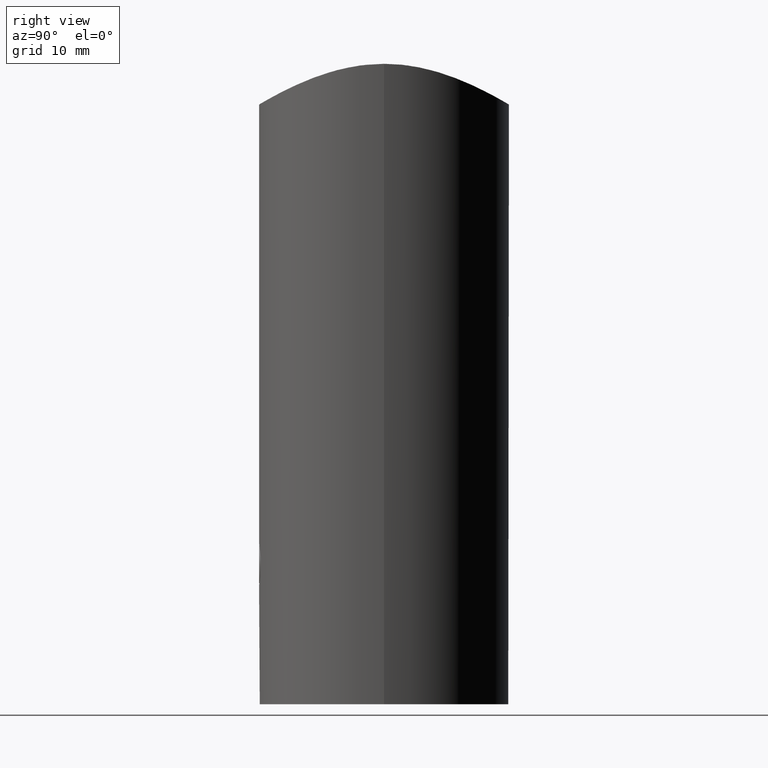
[diagram: clean part render]
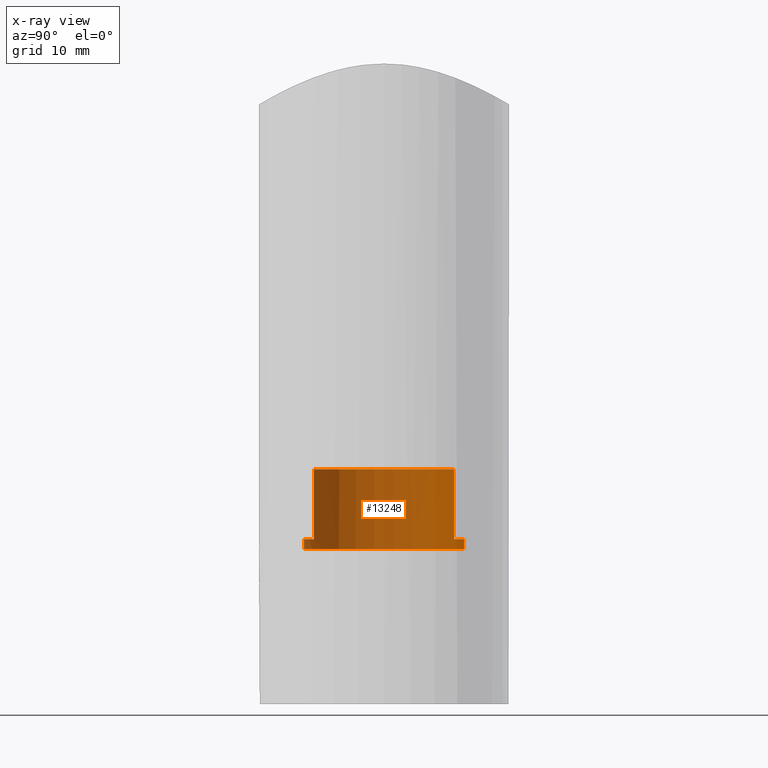
[diagram: x-ray — body ghosted, one internal face saturated and labeled with its STEP entity id]
A machine part, right view, then the same camera in x-ray: the body is ghosted and one INTERNAL B-rep face — a face not visible from any outside direction — is saturated and labeled: STEP entity #13248.
In plain terms, the highlighted cylindrical surface (partial cylindrical patch) has radius 8 mm, axis along (-0, -0, -1).
Its self-contained STEP definition (entity closure, byte-faithful):
#357 = CARTESIAN_POINT ( 'NONE',  ( 0.0000000000000000000, 0.0000000000000000000, -6.999999999999999100 ) ) ;
#424 = AXIS2_PLACEMENT_3D ( 'NONE', #4896, #6986, #9425 ) ;
#531 = VERTEX_POINT ( 'NONE', #5431 ) ;
#660 = DIRECTION ( 'NONE',  ( 0.0000000000000000000, 1.000000000000000000, 0.0000000000000000000 ) ) ;
#1226 = DIRECTION ( 'NONE',  ( -0.0000000000000000000, -6.563074804307201300E-018, -1.000000000000000000 ) ) ;
#1333 = EDGE_CURVE ( 'NONE', #4275, #531, #2407, .T. ) ;
#1334 = DIRECTION ( 'NONE',  ( -0.0000000000000000000, -6.563074804307201300E-018, -1.000000000000000000 ) ) ;
#1531 = LINE ( 'NONE', #4178, #2034 ) ;
#1640 = CARTESIAN_POINT ( 'NONE',  ( 9.797174393178825700E-016, -8.000000000000000000, -6.999999999999999100 ) ) ;
#1774 = VERTEX_POINT ( 'NONE', #4955 ) ;
#1994 = ORIENTED_EDGE ( 'NONE', *, *, #3260, .T. ) ;
#2034 = VECTOR ( 'NONE', #3253, 1000.000000000000000 ) ;
#2283 = VERTEX_POINT ( 'NONE', #5816 ) ;
#2407 = CIRCLE ( 'NONE', #4035, 8.000000000000000000 ) ;
#2456 = AXIS2_PLACEMENT_3D ( 'NONE', #3503, #5815, #6990 ) ;
#2934 = VECTOR ( 'NONE', #4852, 1000.000000000000000 ) ;
#3020 = CARTESIAN_POINT ( 'NONE',  ( 0.0000000000000000000, -1.542322579012192500E-016, -23.50000000000000000 ) ) ;
#3253 = DIRECTION ( 'NONE',  ( -0.0000000000000000000, -0.0000000000000000000, 1.000000000000000000 ) ) ;
#3260 = EDGE_CURVE ( 'NONE', #8071, #2283, #1531, .T. ) ;
#3427 = ORIENTED_EDGE ( 'NONE', *, *, #12025, .F. ) ;
#3503 = CARTESIAN_POINT ( 'NONE',  ( 0.0000000000000000000, 0.0000000000000000000, 0.0000000000000000000 ) ) ;
#3688 = CARTESIAN_POINT ( 'NONE',  ( -3.872983346207416100, 7.000000000000000000, -6.999999999999999100 ) ) ;
#4035 = AXIS2_PLACEMENT_3D ( 'NONE', #9734, #10955, #6495 ) ;
#4178 = CARTESIAN_POINT ( 'NONE',  ( -3.872983346207416100, -7.000000000000000000, -6.999999999999999100 ) ) ;
#4191 = EDGE_CURVE ( 'NONE', #11276, #1774, #8481, .T. ) ;
#4275 = VERTEX_POINT ( 'NONE', #4666 ) ;
#4330 = EDGE_CURVE ( 'NONE', #1774, #9859, #12624, .T. ) ;
#4359 = AXIS2_PLACEMENT_3D ( 'NONE', #357, #9413, #11597 ) ;
#4423 = ORIENTED_EDGE ( 'NONE', *, *, #4330, .F. ) ;
#4654 = EDGE_CURVE ( 'NONE', #2283, #5459, #8192, .T. ) ;
#4666 = CARTESIAN_POINT ( 'NONE',  ( 0.0000000000000000000, 8.000000000000000000, -6.999999999999999100 ) ) ;
#4852 = DIRECTION ( 'NONE',  ( -0.0000000000000000000, -0.0000000000000000000, 1.000000000000000000 ) ) ;
#4896 = CARTESIAN_POINT ( 'NONE',  ( 0.0000000000000000000, -5.250459843445762300E-017, -8.000000000000000000 ) ) ;
#4955 = CARTESIAN_POINT ( 'NONE',  ( 9.797174393178825700E-016, -8.000000000000000000, -8.000000000000000000 ) ) ;
#5431 = CARTESIAN_POINT ( 'NONE',  ( -3.872983346207416100, 7.000000000000000000, -6.999999999999999100 ) ) ;
#5459 = VERTEX_POINT ( 'NONE', #5539 ) ;
#5539 = CARTESIAN_POINT ( 'NONE',  ( -3.872983346207416100, 7.000000000000000000, 0.0000000000000000000 ) ) ;
#5616 = CIRCLE ( 'NONE', #4359, 8.000000000000000000 ) ;
#5815 = DIRECTION ( 'NONE',  ( -0.0000000000000000000, -6.563074804307201300E-018, -1.000000000000000000 ) ) ;
#5816 = CARTESIAN_POINT ( 'NONE',  ( -3.872983346207416100, -7.000000000000000000, 0.0000000000000000000 ) ) ;
#6271 = ORIENTED_EDGE ( 'NONE', *, *, #4654, .T. ) ;
#6401 = DIRECTION ( 'NONE',  ( -0.0000000000000000000, -6.563074804307201300E-018, -1.000000000000000000 ) ) ;
#6495 = DIRECTION ( 'NONE',  ( 1.000000000000000000, 0.0000000000000000000, 0.0000000000000000000 ) ) ;
#6844 = CARTESIAN_POINT ( 'NONE',  ( 9.797174393178825700E-016, -8.000000000000000000, -23.50000000000000000 ) ) ;
#6986 = DIRECTION ( 'NONE',  ( -0.0000000000000000000, -6.563074804307201300E-018, -1.000000000000000000 ) ) ;
#6990 = DIRECTION ( 'NONE',  ( 0.0000000000000000000, 1.000000000000000000, -6.563074804307201300E-018 ) ) ;
#7031 = EDGE_LOOP ( 'NONE', ( #9003, #3427, #1994, #6271, #13161, #9365, #14104, #4423 ) ) ;
#8016 = AXIS2_PLACEMENT_3D ( 'NONE', #3020, #6401, #660 ) ;
#8071 = VERTEX_POINT ( 'NONE', #9342 ) ;
#8192 = CIRCLE ( 'NONE', #2456, 8.000000000000000000 ) ;
#8246 = LINE ( 'NONE', #12466, #13795 ) ;
#8481 = LINE ( 'NONE', #6844, #10051 ) ;
#9003 = ORIENTED_EDGE ( 'NONE', *, *, #4191, .F. ) ;
#9342 = CARTESIAN_POINT ( 'NONE',  ( -3.872983346207416100, -7.000000000000000000, -6.999999999999999100 ) ) ;
#9365 = ORIENTED_EDGE ( 'NONE', *, *, #1333, .F. ) ;
#9371 = CYLINDRICAL_SURFACE ( 'NONE', #8016, 8.000000000000000000 ) ;
#9413 = DIRECTION ( 'NONE',  ( 0.0000000000000000000, 0.0000000000000000000, 1.000000000000000000 ) ) ;
#9425 = DIRECTION ( 'NONE',  ( 0.0000000000000000000, 1.000000000000000000, 0.0000000000000000000 ) ) ;
#9734 = CARTESIAN_POINT ( 'NONE',  ( 0.0000000000000000000, 0.0000000000000000000, -6.999999999999999100 ) ) ;
#9859 = VERTEX_POINT ( 'NONE', #13391 ) ;
#10051 = VECTOR ( 'NONE', #1334, 1000.000000000000000 ) ;
#10955 = DIRECTION ( 'NONE',  ( 0.0000000000000000000, 0.0000000000000000000, 1.000000000000000000 ) ) ;
#11276 = VERTEX_POINT ( 'NONE', #1640 ) ;
#11597 = DIRECTION ( 'NONE',  ( 1.000000000000000000, 0.0000000000000000000, 0.0000000000000000000 ) ) ;
#11929 = EDGE_CURVE ( 'NONE', #4275, #9859, #8246, .T. ) ;
#12025 = EDGE_CURVE ( 'NONE', #8071, #11276, #5616, .T. ) ;
#12466 = CARTESIAN_POINT ( 'NONE',  ( 0.0000000000000000000, 8.000000000000000000, -23.50000000000000000 ) ) ;
#12624 = CIRCLE ( 'NONE', #424, 8.000000000000000000 ) ;
#12822 = FACE_OUTER_BOUND ( 'NONE', #7031, .T. ) ;
#13161 = ORIENTED_EDGE ( 'NONE', *, *, #13622, .F. ) ;
#13248 = ADVANCED_FACE ( 'NONE', ( #12822 ), #9371, .T. ) ;
#13391 = CARTESIAN_POINT ( 'NONE',  ( 0.0000000000000000000, 8.000000000000000000, -8.000000000000000000 ) ) ;
#13622 = EDGE_CURVE ( 'NONE', #531, #5459, #13903, .T. ) ;
#13795 = VECTOR ( 'NONE', #1226, 1000.000000000000000 ) ;
#13903 = LINE ( 'NONE', #3688, #2934 ) ;
#14104 = ORIENTED_EDGE ( 'NONE', *, *, #11929, .T. ) ;